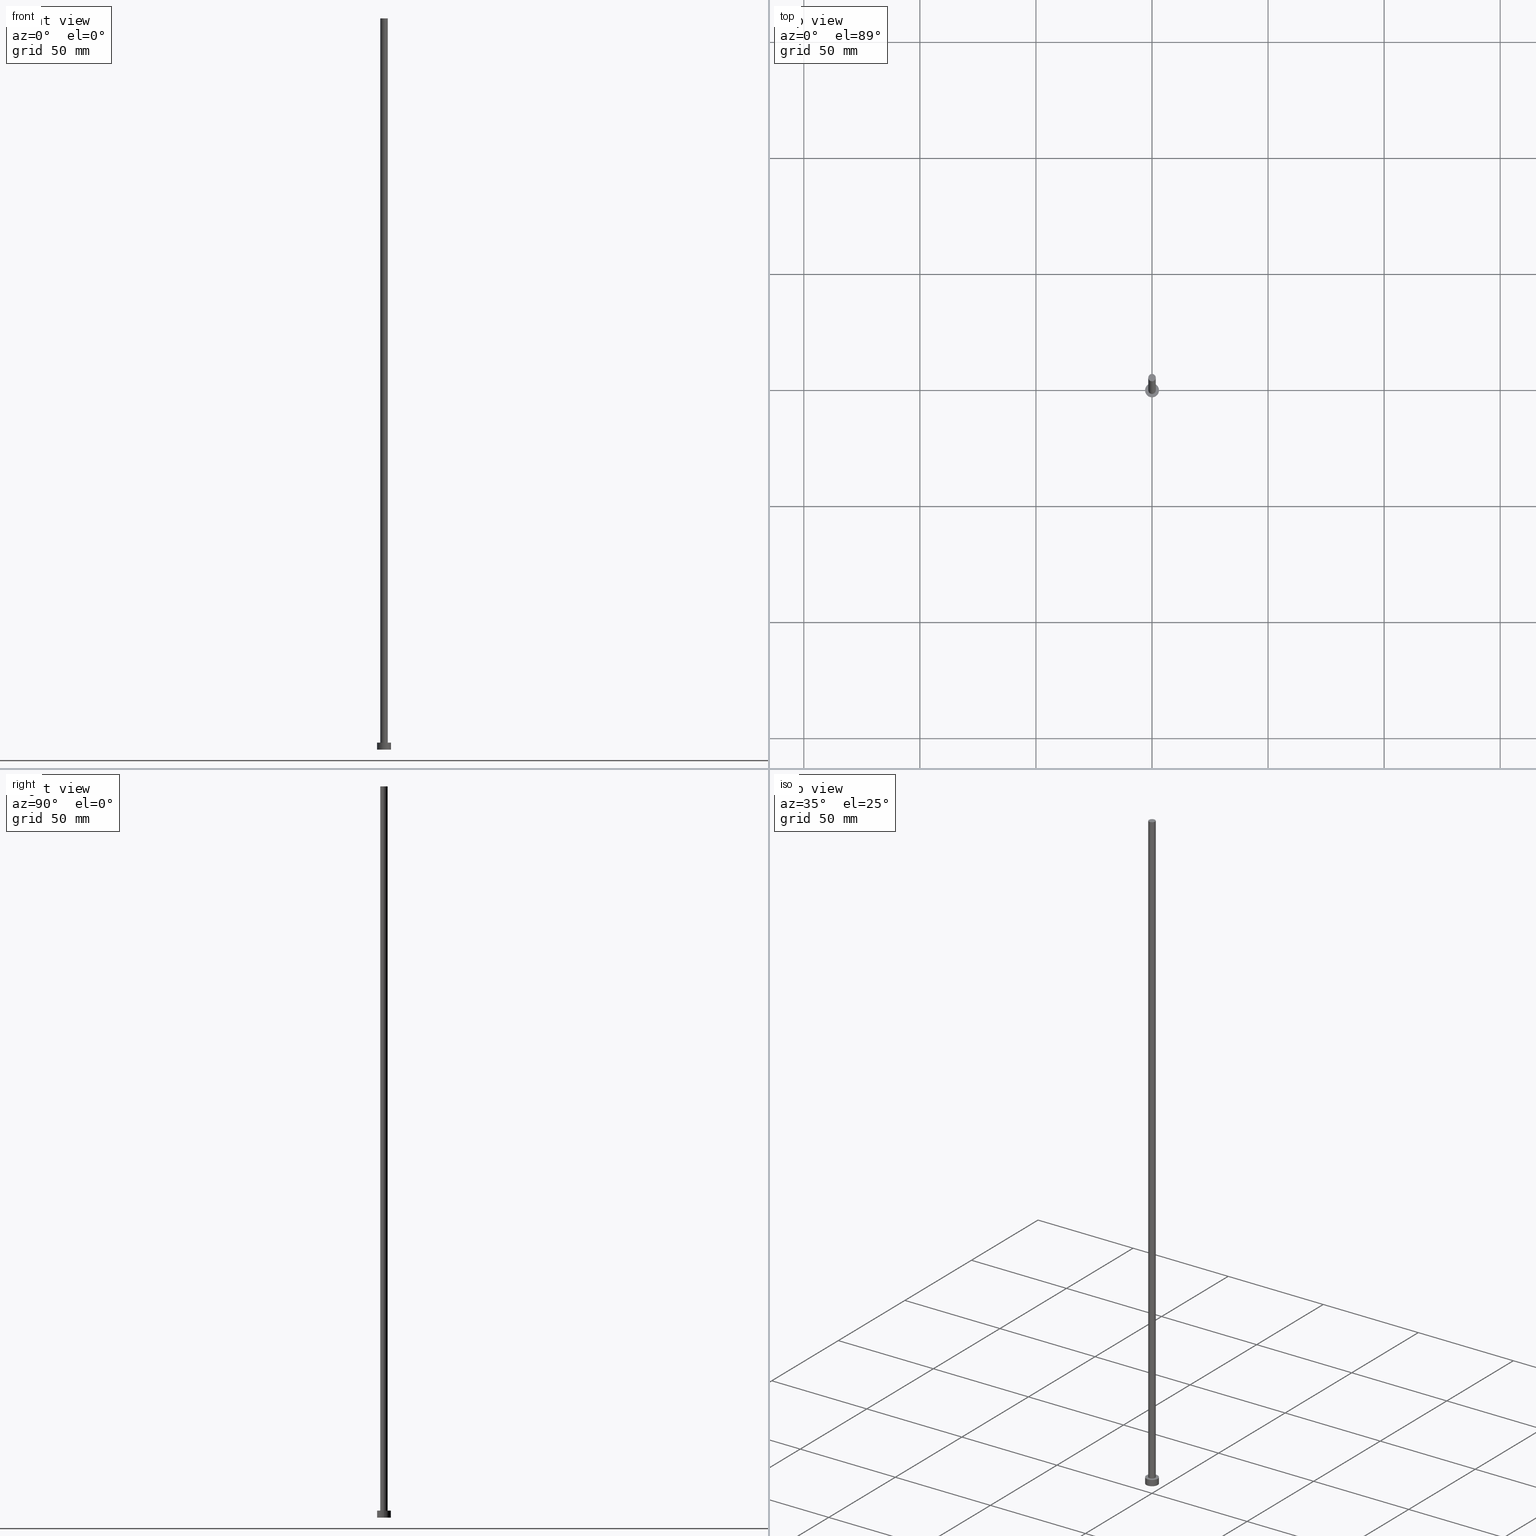
[diagram: canonical four-view strip — front | top / right | iso, engineering-drawing reading convention]
A machine part, canonical four-view strip (front | top / right | iso — engineering-drawing reading convention). The complete STEP part file that produces these views, byte-faithful:
ISO-10303-21;
HEADER;
FILE_DESCRIPTION (( 'STEP AP203' ),
    '1' );
FILE_NAME ('308b.STEP',
    '2023-02-12T12:44:04',
    ( '' ),
    ( '' ),
    'SwSTEP 2.0',
    'SolidWorks 2019',
    '' );
FILE_SCHEMA (( 'CONFIG_CONTROL_DESIGN' ));
ENDSEC;

DATA;
#1 = APPROVAL ( #141, 'NEUR�EN�' ) ;
#2 = CALENDAR_DATE ( 2023, 12, 2 ) ;
#3 = ORIENTED_EDGE ( 'NONE', *, *, #116, .T. ) ;
#4 = EDGE_CURVE ( 'NONE', #40, #177, #83, .T. ) ;
#5 = DIRECTION ( 'NONE',  ( 1.000000000000000000, 0.000000000000000000, -0.000000000000000000 ) ) ;
#6 = VECTOR ( 'NONE', #245, 1000.000000000000000 ) ;
#7 = COORDINATED_UNIVERSAL_TIME_OFFSET ( 1, 0, .AHEAD. ) ;
#8 = LINE ( 'NONE', #27, #220 ) ;
#9 = DIRECTION ( 'NONE',  ( 1.000000000000000000, 0.000000000000000000, 0.000000000000000000 ) ) ;
#10 = AXIS2_PLACEMENT_3D ( 'NONE', #52, #149, #31 ) ;
#11 = DIRECTION ( 'NONE',  ( -1.000000000000000000, 0.000000000000000000, 0.000000000000000000 ) ) ;
#12 = CC_DESIGN_APPROVAL ( #1, ( #73 ) ) ;
#13 = CARTESIAN_POINT ( 'NONE',  ( 1.600000000000000089, 1.959434878635765230E-16, 3.000000000000000000 ) ) ;
#14 = FACE_OUTER_BOUND ( 'NONE', #82, .T. ) ;
#15 = AXIS2_PLACEMENT_3D ( 'NONE', #88, #202, #169 ) ;
#16 = AXIS2_PLACEMENT_3D ( 'NONE', #91, #69, #50 ) ;
#17 = DIRECTION ( 'NONE',  ( 0.000000000000000000, 0.000000000000000000, 1.000000000000000000 ) ) ;
#18 = PERSON_AND_ORGANIZATION_ROLE ( 'creator' ) ;
#19 = EDGE_CURVE ( 'NONE', #144, #62, #157, .T. ) ;
#20 = EDGE_LOOP ( 'NONE', ( #183, #215 ) ) ;
#21 = APPROVAL_DATE_TIME ( #182, #246 ) ;
#22 = PERSON_AND_ORGANIZATION ( #41, #60 ) ;
#23 = EDGE_LOOP ( 'NONE', ( #45, #65 ) ) ;
#24 = DATE_TIME_ROLE ( 'classification_date' ) ;
#25 = CARTESIAN_POINT ( 'NONE',  ( 0.000000000000000000, 0.000000000000000000, 315.0000000000000000 ) ) ;
#26 = DIRECTION ( 'NONE',  ( 0.000000000000000000, 0.000000000000000000, 1.000000000000000000 ) ) ;
#27 = CARTESIAN_POINT ( 'NONE',  ( -3.000000000000000444, 0.000000000000000000, 3.000000000000000000 ) ) ;
#28 = APPLICATION_CONTEXT ( 'configuration controlled 3d designs of mechanical parts and assemblies' ) ;
#29 = CARTESIAN_POINT ( 'NONE',  ( -1.600000000000000089, 0.000000000000000000, 315.0000000000000000 ) ) ;
#30 = CYLINDRICAL_SURFACE ( 'NONE', #16, 3.000000000000000444 ) ;
#31 = DIRECTION ( 'NONE',  ( 1.000000000000000000, 0.000000000000000000, 0.000000000000000000 ) ) ;
#32 = LOCAL_TIME ( 13, 44, 4.000000000000000000, #133 ) ;
#33 = CYLINDRICAL_SURFACE ( 'NONE', #222, 1.600000000000000089 ) ;
#34 = ADVANCED_FACE ( 'NONE', ( #234 ), #201, .T. ) ;
#35 = CALENDAR_DATE ( 2023, 12, 2 ) ;
#36 = APPLICATION_PROTOCOL_DEFINITION ( 'international standard', 'config_control_design', 1994, #134 ) ;
#37 = CALENDAR_DATE ( 2023, 12, 2 ) ;
#38 = PERSON_AND_ORGANIZATION_ROLE ( 'design_supplier' ) ;
#39 = ADVANCED_FACE ( 'NONE', ( #137 ), #110, .T. ) ;
#40 = VERTEX_POINT ( 'NONE', #188 ) ;
#41 = PERSON ( 'NEUR�EN�', 'NEUR�EN�', 'NEUR�EN�', ('NEUR�EN�'), ('NEUR�EN�'), ('NEUR�EN�') ) ;
#42 = ORIENTED_EDGE ( 'NONE', *, *, #143, .T. ) ;
#43 = AXIS2_PLACEMENT_3D ( 'NONE', #148, #112, #11 ) ;
#44 = CALENDAR_DATE ( 2023, 12, 2 ) ;
#45 = ORIENTED_EDGE ( 'NONE', *, *, #229, .F. ) ;
#46 = CARTESIAN_POINT ( 'NONE',  ( 0.000000000000000000, 0.000000000000000000, 3.000000000000000000 ) ) ;
#47 = CIRCLE ( 'NONE', #10, 1.600000000000000089 ) ;
#48 = DIRECTION ( 'NONE',  ( 1.000000000000000000, 0.000000000000000000, -0.000000000000000000 ) ) ;
#49 = CC_DESIGN_PERSON_AND_ORGANIZATION_ASSIGNMENT ( #135, #138, ( #150 ) ) ;
#50 = DIRECTION ( 'NONE',  ( -1.000000000000000000, 0.000000000000000000, 0.000000000000000000 ) ) ;
#51 = DIRECTION ( 'NONE',  ( 0.000000000000000000, 0.000000000000000000, 1.000000000000000000 ) ) ;
#52 = CARTESIAN_POINT ( 'NONE',  ( 0.000000000000000000, 0.000000000000000000, 315.0000000000000000 ) ) ;
#53 = UNCERTAINTY_MEASURE_WITH_UNIT (LENGTH_MEASURE( 1.000000000000000082E-05 ), #113, 'distance_accuracy_value', 'NONE');
#54 = EDGE_CURVE ( 'NONE', #78, #238, #89, .T. ) ;
#55 = CARTESIAN_POINT ( 'NONE',  ( 0.000000000000000000, 0.000000000000000000, 3.000000000000000000 ) ) ;
#56 = DIRECTION ( 'NONE',  ( 0.000000000000000000, 0.000000000000000000, 1.000000000000000000 ) ) ;
#57 = PERSON_AND_ORGANIZATION ( #41, #60 ) ;
#58 = CLOSED_SHELL ( 'NONE', ( #132, #114, #189, #111, #152, #39, #34 ) ) ;
#59 = EDGE_CURVE ( 'NONE', #62, #144, #208, .T. ) ;
#60 = ORGANIZATION ( 'NEUR�EN�', 'NEUR�EN�', '' ) ;
#61 = APPROVAL_STATUS ( 'not_yet_approved' ) ;
#62 = VERTEX_POINT ( 'NONE', #130 ) ;
#63 = CARTESIAN_POINT ( 'NONE',  ( 0.000000000000000000, 0.000000000000000000, 315.0000000000000000 ) ) ;
#64 = APPROVAL_ROLE ( '' ) ;
#65 = ORIENTED_EDGE ( 'NONE', *, *, #143, .F. ) ;
#66 = APPROVAL_PERSON_ORGANIZATION ( #199, #246, #64 ) ;
#67 = VERTEX_POINT ( 'NONE', #107 ) ;
#68 = DIRECTION ( 'NONE',  ( -1.000000000000000000, 0.000000000000000000, 0.000000000000000000 ) ) ;
#69 = DIRECTION ( 'NONE',  ( -0.000000000000000000, -0.000000000000000000, -1.000000000000000000 ) ) ;
#70 = CARTESIAN_POINT ( 'NONE',  ( 0.000000000000000000, 0.000000000000000000, 0.000000000000000000 ) ) ;
#71 = DIRECTION ( 'NONE',  ( 0.000000000000000000, 0.000000000000000000, 1.000000000000000000 ) ) ;
#72 = DIRECTION ( 'NONE',  ( 0.000000000000000000, 0.000000000000000000, 1.000000000000000000 ) ) ;
#73 = SECURITY_CLASSIFICATION ( '', '', #178 ) ;
#74 = LINE ( 'NONE', #97, #181 ) ;
#75 = PRODUCT_RELATED_PRODUCT_CATEGORY ( 'detail', '', ( #203 ) ) ;
#76 = VECTOR ( 'NONE', #86, 1000.000000000000000 ) ;
#77 = CARTESIAN_POINT ( 'NONE',  ( 0.000000000000000000, 0.000000000000000000, 0.000000000000000000 ) ) ;
#78 = VERTEX_POINT ( 'NONE', #13 ) ;
#79 = ORIENTED_EDGE ( 'NONE', *, *, #4, .T. ) ;
#80 = COORDINATED_UNIVERSAL_TIME_OFFSET ( 1, 0, .AHEAD. ) ;
#81 = EDGE_CURVE ( 'NONE', #62, #163, #8, .T. ) ;
#82 = EDGE_LOOP ( 'NONE', ( #104, #196 ) ) ;
#83 = CIRCLE ( 'NONE', #230, 1.600000000000000089 ) ;
#84 = ORIENTED_EDGE ( 'NONE', *, *, #232, .F. ) ;
#85 = CALENDAR_DATE ( 2023, 12, 2 ) ;
#86 = DIRECTION ( 'NONE',  ( -0.000000000000000000, -0.000000000000000000, -1.000000000000000000 ) ) ;
#87 = EDGE_CURVE ( 'NONE', #238, #78, #250, .T. ) ;
#88 = CARTESIAN_POINT ( 'NONE',  ( 0.000000000000000000, 0.000000000000000000, 3.000000000000000000 ) ) ;
#89 = CIRCLE ( 'NONE', #120, 1.600000000000000089 ) ;
#90 = APPROVAL_ROLE ( '' ) ;
#91 = CARTESIAN_POINT ( 'NONE',  ( 0.000000000000000000, 0.000000000000000000, 3.000000000000000000 ) ) ;
#92 = CARTESIAN_POINT ( 'NONE',  ( 0.000000000000000000, 0.000000000000000000, 3.000000000000000000 ) ) ;
#93 = CYLINDRICAL_SURFACE ( 'NONE', #243, 3.000000000000000444 ) ;
#94 = AXIS2_PLACEMENT_3D ( 'NONE', #46, #124, #219 ) ;
#95 =( NAMED_UNIT ( * ) SI_UNIT ( $, .STERADIAN. ) SOLID_ANGLE_UNIT ( ) );
#96 = PRODUCT_DEFINITION ( 'NEZN�M�', '', #150, #192 ) ;
#97 = CARTESIAN_POINT ( 'NONE',  ( 1.600000000000000089, 1.959434878635765230E-16, 315.0000000000000000 ) ) ;
#98 = EDGE_CURVE ( 'NONE', #177, #40, #47, .T. ) ;
#99 = ORIENTED_EDGE ( 'NONE', *, *, #54, .T. ) ;
#100 = ORIENTED_EDGE ( 'NONE', *, *, #193, .F. ) ;
#101 =( GEOMETRIC_REPRESENTATION_CONTEXT ( 3 ) GLOBAL_UNCERTAINTY_ASSIGNED_CONTEXT ( ( #53 ) ) GLOBAL_UNIT_ASSIGNED_CONTEXT ( ( #113, #212, #95 ) ) REPRESENTATION_CONTEXT ( 'NONE', 'WORKASPACE' ) );
#102 = PERSON_AND_ORGANIZATION ( #41, #60 ) ;
#103 = ORIENTED_EDGE ( 'NONE', *, *, #4, .F. ) ;
#104 = ORIENTED_EDGE ( 'NONE', *, *, #59, .T. ) ;
#105 = ORIENTED_EDGE ( 'NONE', *, *, #87, .T. ) ;
#106 = FACE_OUTER_BOUND ( 'NONE', #23, .T. ) ;
#107 = CARTESIAN_POINT ( 'NONE',  ( 3.000000000000000444, 3.673940397442060361E-16, 0.000000000000000000 ) ) ;
#108 = FACE_BOUND ( 'NONE', #20, .T. ) ;
#109 = AXIS2_PLACEMENT_3D ( 'NONE', #241, #221, #48 ) ;
#110 = CYLINDRICAL_SURFACE ( 'NONE', #43, 1.600000000000000089 ) ;
#111 = ADVANCED_FACE ( 'NONE', ( #108, #14 ), #146, .T. ) ;
#112 = DIRECTION ( 'NONE',  ( -0.000000000000000000, -0.000000000000000000, -1.000000000000000000 ) ) ;
#113 =( LENGTH_UNIT ( ) NAMED_UNIT ( * ) SI_UNIT ( .MILLI., .METRE. ) );
#114 = ADVANCED_FACE ( 'NONE', ( #223 ), #93, .T. ) ;
#115 = CIRCLE ( 'NONE', #140, 3.000000000000000444 ) ;
#116 = EDGE_CURVE ( 'NONE', #177, #238, #131, .T. ) ;
#117 = MECHANICAL_CONTEXT ( 'NONE', #134, 'mechanical' ) ;
#118 = ORIENTED_EDGE ( 'NONE', *, *, #229, .T. ) ;
#119 = DATE_TIME_ROLE ( 'creation_date' ) ;
#120 = AXIS2_PLACEMENT_3D ( 'NONE', #224, #71, #194 ) ;
#121 = LOCAL_TIME ( 13, 44, 4.000000000000000000, #254 ) ;
#122 = DATE_AND_TIME ( #44, #121 ) ;
#123 = ORIENTED_EDGE ( 'NONE', *, *, #19, .F. ) ;
#124 = DIRECTION ( 'NONE',  ( 0.000000000000000000, 0.000000000000000000, 1.000000000000000000 ) ) ;
#125 = APPROVAL ( #162, 'NEUR�EN�' ) ;
#126 = EDGE_LOOP ( 'NONE', ( #100, #180, #185, #118 ) ) ;
#127 = DIRECTION ( 'NONE',  ( -0.000000000000000000, -0.000000000000000000, -1.000000000000000000 ) ) ;
#128 = MANIFOLD_SOLID_BREP ( 'P�idat vysunut�m3', #58 ) ;
#129 = LINE ( 'NONE', #171, #6 ) ;
#130 = CARTESIAN_POINT ( 'NONE',  ( -3.000000000000000444, 0.000000000000000000, 3.000000000000000000 ) ) ;
#131 = LINE ( 'NONE', #151, #76 ) ;
#132 = ADVANCED_FACE ( 'NONE', ( #210 ), #33, .T. ) ;
#133 = COORDINATED_UNIVERSAL_TIME_OFFSET ( 1, 0, .AHEAD. ) ;
#134 = APPLICATION_CONTEXT ( 'configuration controlled 3d designs of mechanical parts and assemblies' ) ;
#135 = PERSON_AND_ORGANIZATION ( #41, #60 ) ;
#136 = CC_DESIGN_PERSON_AND_ORGANIZATION_ASSIGNMENT ( #176, #252, ( #203 ) ) ;
#137 = FACE_OUTER_BOUND ( 'NONE', #255, .T. ) ;
#138 = PERSON_AND_ORGANIZATION_ROLE ( 'creator' ) ;
#139 = ORIENTED_EDGE ( 'NONE', *, *, #98, .F. ) ;
#140 = AXIS2_PLACEMENT_3D ( 'NONE', #167, #72, #145 ) ;
#141 = APPROVAL_STATUS ( 'not_yet_approved' ) ;
#142 = EDGE_LOOP ( 'NONE', ( #103, #198, #99, #216 ) ) ;
#143 = EDGE_CURVE ( 'NONE', #67, #163, #115, .T. ) ;
#144 = VERTEX_POINT ( 'NONE', #227 ) ;
#145 = DIRECTION ( 'NONE',  ( 1.000000000000000000, 0.000000000000000000, 0.000000000000000000 ) ) ;
#146 = PLANE ( 'NONE',  #179 ) ;
#147 = CC_DESIGN_PERSON_AND_ORGANIZATION_ASSIGNMENT ( #57, #18, ( #96 ) ) ;
#148 = CARTESIAN_POINT ( 'NONE',  ( 0.000000000000000000, 0.000000000000000000, 315.0000000000000000 ) ) ;
#149 = DIRECTION ( 'NONE',  ( 0.000000000000000000, 0.000000000000000000, 1.000000000000000000 ) ) ;
#150 = PRODUCT_DEFINITION_FORMATION_WITH_SPECIFIED_SOURCE ( 'LIBOVOLN�', '', #203, .NOT_KNOWN. ) ;
#151 = CARTESIAN_POINT ( 'NONE',  ( -1.600000000000000089, 0.000000000000000000, 315.0000000000000000 ) ) ;
#152 = ADVANCED_FACE ( 'NONE', ( #106 ), #187, .F. ) ;
#153 = CARTESIAN_POINT ( 'NONE',  ( -1.600000000000000089, 0.000000000000000000, 3.000000000000000000 ) ) ;
#154 = DIRECTION ( 'NONE',  ( 1.000000000000000000, 0.000000000000000000, 0.000000000000000000 ) ) ;
#155 = APPLICATION_PROTOCOL_DEFINITION ( 'international standard', 'config_control_design', 1994, #28 ) ;
#156 = DATE_AND_TIME ( #37, #186 ) ;
#157 = CIRCLE ( 'NONE', #94, 3.000000000000000444 ) ;
#158 = ORIENTED_EDGE ( 'NONE', *, *, #98, .T. ) ;
#159 = APPROVAL_PERSON_ORGANIZATION ( #22, #125, #237 ) ;
#160 = APPROVAL_DATE_TIME ( #235, #125 ) ;
#161 = EDGE_LOOP ( 'NONE', ( #158, #79 ) ) ;
#162 = APPROVAL_STATUS ( 'not_yet_approved' ) ;
#163 = VERTEX_POINT ( 'NONE', #205 ) ;
#164 = PERSON_AND_ORGANIZATION_ROLE ( 'classification_officer' ) ;
#165 = ORIENTED_EDGE ( 'NONE', *, *, #193, .T. ) ;
#166 = DATE_AND_TIME ( #85, #240 ) ;
#167 = CARTESIAN_POINT ( 'NONE',  ( 0.000000000000000000, 0.000000000000000000, 0.000000000000000000 ) ) ;
#168 = PRODUCT_DEFINITION_SHAPE ( 'NONE', 'NONE',  #96 ) ;
#169 = DIRECTION ( 'NONE',  ( 1.000000000000000000, 0.000000000000000000, 0.000000000000000000 ) ) ;
#170 = APPROVAL_DATE_TIME ( #166, #1 ) ;
#171 = CARTESIAN_POINT ( 'NONE',  ( 3.000000000000000444, 3.673940397442060361E-16, 3.000000000000000000 ) ) ;
#172 = DIRECTION ( 'NONE',  ( 0.000000000000000000, 0.000000000000000000, 1.000000000000000000 ) ) ;
#173 = DIRECTION ( 'NONE',  ( -1.000000000000000000, 0.000000000000000000, 0.000000000000000000 ) ) ;
#174 = AXIS2_PLACEMENT_3D ( 'NONE', #77, #56, #154 ) ;
#175 = CIRCLE ( 'NONE', #226, 3.000000000000000444 ) ;
#176 = PERSON_AND_ORGANIZATION ( #41, #60 ) ;
#177 = VERTEX_POINT ( 'NONE', #29 ) ;
#178 = SECURITY_CLASSIFICATION_LEVEL ( 'unclassified' ) ;
#179 = AXIS2_PLACEMENT_3D ( 'NONE', #92, #172, #247 ) ;
#180 = ORIENTED_EDGE ( 'NONE', *, *, #59, .F. ) ;
#181 = VECTOR ( 'NONE', #228, 1000.000000000000000 ) ;
#182 = DATE_AND_TIME ( #2, #251 ) ;
#183 = ORIENTED_EDGE ( 'NONE', *, *, #87, .F. ) ;
#184 = AXIS2_PLACEMENT_3D ( 'NONE', #63, #26, #5 ) ;
#185 = ORIENTED_EDGE ( 'NONE', *, *, #81, .T. ) ;
#186 = LOCAL_TIME ( 13, 44, 4.000000000000000000, #80 ) ;
#187 = PLANE ( 'NONE',  #109 ) ;
#188 = CARTESIAN_POINT ( 'NONE',  ( 1.600000000000000089, 1.959434878635765230E-16, 315.0000000000000000 ) ) ;
#189 = ADVANCED_FACE ( 'NONE', ( #206 ), #30, .T. ) ;
#190 = CARTESIAN_POINT ( 'NONE',  ( 0.000000000000000000, 0.000000000000000000, 3.000000000000000000 ) ) ;
#191 = DIRECTION ( 'NONE',  ( 0.000000000000000000, 0.000000000000000000, 1.000000000000000000 ) ) ;
#192 = DESIGN_CONTEXT ( 'detailed design', #28, 'design' ) ;
#193 = EDGE_CURVE ( 'NONE', #144, #67, #129, .T. ) ;
#194 = DIRECTION ( 'NONE',  ( 1.000000000000000000, 0.000000000000000000, 0.000000000000000000 ) ) ;
#195 = CC_DESIGN_SECURITY_CLASSIFICATION ( #73, ( #150 ) ) ;
#196 = ORIENTED_EDGE ( 'NONE', *, *, #19, .T. ) ;
#197 = COORDINATED_UNIVERSAL_TIME_OFFSET ( 1, 0, .AHEAD. ) ;
#198 = ORIENTED_EDGE ( 'NONE', *, *, #232, .T. ) ;
#199 = PERSON_AND_ORGANIZATION ( #41, #60 ) ;
#200 = CC_DESIGN_PERSON_AND_ORGANIZATION_ASSIGNMENT ( #102, #164, ( #73 ) ) ;
#201 = PLANE ( 'NONE',  #184 ) ;
#202 = DIRECTION ( 'NONE',  ( 0.000000000000000000, 0.000000000000000000, 1.000000000000000000 ) ) ;
#203 = PRODUCT ( '308b', '308b', '', ( #117 ) ) ;
#204 = CC_DESIGN_DATE_AND_TIME_ASSIGNMENT ( #122, #24, ( #73 ) ) ;
#205 = CARTESIAN_POINT ( 'NONE',  ( -3.000000000000000444, 0.000000000000000000, 0.000000000000000000 ) ) ;
#206 = FACE_OUTER_BOUND ( 'NONE', #126, .T. ) ;
#207 = DIRECTION ( 'NONE',  ( 1.000000000000000000, 0.000000000000000000, 0.000000000000000000 ) ) ;
#208 = CIRCLE ( 'NONE', #233, 3.000000000000000444 ) ;
#209 = APPROVAL_PERSON_ORGANIZATION ( #239, #1, #90 ) ;
#210 = FACE_OUTER_BOUND ( 'NONE', #142, .T. ) ;
#211 = CC_DESIGN_APPROVAL ( #125, ( #96 ) ) ;
#212 =( NAMED_UNIT ( * ) PLANE_ANGLE_UNIT ( ) SI_UNIT ( $, .RADIAN. ) );
#213 = CC_DESIGN_PERSON_AND_ORGANIZATION_ASSIGNMENT ( #214, #38, ( #150 ) ) ;
#214 = PERSON_AND_ORGANIZATION ( #41, #60 ) ;
#215 = ORIENTED_EDGE ( 'NONE', *, *, #54, .F. ) ;
#216 = ORIENTED_EDGE ( 'NONE', *, *, #116, .F. ) ;
#217 = ORIENTED_EDGE ( 'NONE', *, *, #81, .F. ) ;
#218 = EDGE_LOOP ( 'NONE', ( #123, #165, #42, #217 ) ) ;
#219 = DIRECTION ( 'NONE',  ( 1.000000000000000000, 0.000000000000000000, 0.000000000000000000 ) ) ;
#220 = VECTOR ( 'NONE', #127, 1000.000000000000000 ) ;
#221 = DIRECTION ( 'NONE',  ( 0.000000000000000000, 0.000000000000000000, 1.000000000000000000 ) ) ;
#222 = AXIS2_PLACEMENT_3D ( 'NONE', #242, #248, #68 ) ;
#223 = FACE_OUTER_BOUND ( 'NONE', #218, .T. ) ;
#224 = CARTESIAN_POINT ( 'NONE',  ( 0.000000000000000000, 0.000000000000000000, 3.000000000000000000 ) ) ;
#225 = DIRECTION ( 'NONE',  ( -0.000000000000000000, -0.000000000000000000, -1.000000000000000000 ) ) ;
#226 = AXIS2_PLACEMENT_3D ( 'NONE', #70, #51, #207 ) ;
#227 = CARTESIAN_POINT ( 'NONE',  ( 3.000000000000000444, 3.673940397442060361E-16, 3.000000000000000000 ) ) ;
#228 = DIRECTION ( 'NONE',  ( -0.000000000000000000, -0.000000000000000000, -1.000000000000000000 ) ) ;
#229 = EDGE_CURVE ( 'NONE', #163, #67, #175, .T. ) ;
#230 = AXIS2_PLACEMENT_3D ( 'NONE', #25, #17, #253 ) ;
#231 = CC_DESIGN_APPROVAL ( #246, ( #150 ) ) ;
#232 = EDGE_CURVE ( 'NONE', #40, #78, #74, .T. ) ;
#233 = AXIS2_PLACEMENT_3D ( 'NONE', #55, #191, #9 ) ;
#234 = FACE_OUTER_BOUND ( 'NONE', #161, .T. ) ;
#235 = DATE_AND_TIME ( #35, #32 ) ;
#236 = ADVANCED_BREP_SHAPE_REPRESENTATION ( '308b', ( #128, #174 ), #101 ) ;
#237 = APPROVAL_ROLE ( '' ) ;
#238 = VERTEX_POINT ( 'NONE', #153 ) ;
#239 = PERSON_AND_ORGANIZATION ( #41, #60 ) ;
#240 = LOCAL_TIME ( 13, 44, 4.000000000000000000, #7 ) ;
#241 = CARTESIAN_POINT ( 'NONE',  ( 0.000000000000000000, 0.000000000000000000, 0.000000000000000000 ) ) ;
#242 = CARTESIAN_POINT ( 'NONE',  ( 0.000000000000000000, 0.000000000000000000, 315.0000000000000000 ) ) ;
#243 = AXIS2_PLACEMENT_3D ( 'NONE', #190, #225, #173 ) ;
#244 = SHAPE_DEFINITION_REPRESENTATION ( #168, #236 ) ;
#245 = DIRECTION ( 'NONE',  ( -0.000000000000000000, -0.000000000000000000, -1.000000000000000000 ) ) ;
#246 = APPROVAL ( #61, 'NEUR�EN�' ) ;
#247 = DIRECTION ( 'NONE',  ( 1.000000000000000000, 0.000000000000000000, -0.000000000000000000 ) ) ;
#248 = DIRECTION ( 'NONE',  ( -0.000000000000000000, -0.000000000000000000, -1.000000000000000000 ) ) ;
#249 = CC_DESIGN_DATE_AND_TIME_ASSIGNMENT ( #156, #119, ( #96 ) ) ;
#250 = CIRCLE ( 'NONE', #15, 1.600000000000000089 ) ;
#251 = LOCAL_TIME ( 13, 44, 4.000000000000000000, #197 ) ;
#252 = PERSON_AND_ORGANIZATION_ROLE ( 'design_owner' ) ;
#253 = DIRECTION ( 'NONE',  ( 1.000000000000000000, 0.000000000000000000, 0.000000000000000000 ) ) ;
#254 = COORDINATED_UNIVERSAL_TIME_OFFSET ( 1, 0, .AHEAD. ) ;
#255 = EDGE_LOOP ( 'NONE', ( #84, #139, #3, #105 ) ) ;
ENDSEC;
END-ISO-10303-21;
